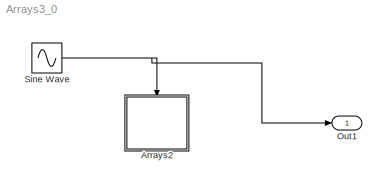
MODEL Arrays3_0
KIND model
CONFIG AbsTol = auto
CONFIG FixedStep = auto
CONFIG MaxStep = auto
CONFIG MinStep = auto
CONFIG RelTol = 1e-3
CONFIG Solver = FixedStepDiscrete
CONFIG SolverMode = Auto
CONFIG StartTime = 0.0
CONFIG StopTime = 10000.0
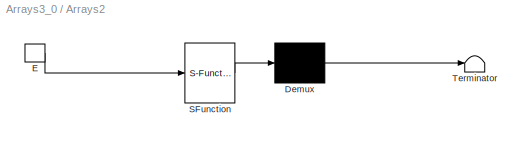
BLOCK [SubSystem] Arrays2
  MaskDescription = Stateflow diagram
  MaskDisplay = plot(sf('Private','sfblk','xIcon'),sf('Private','sfblk','yIcon'));text(0.5,0,sf('Private', 'sfblk', 'tIcon'),'HorizontalAl','Center','VerticalAl','Bottom');
  MaskIconFrame = off
  MaskIconOpaque = off
  MaskIconRotate = none
  MaskIconUnits = autoscale
  MaskSelfModifiable = on
  MaskType = Stateflow
  Ports = [0, 0, 0, 1]
  TreatAsAtomicUnit = off
BLOCK [Demux] Arrays2/ Demux 
  Outputs = 1
  Ports = [1, 1]
BLOCK [S-Function] Arrays2/ SFunction 
  FunctionName = sf_sfun
  PortCounts = [1 1]
  Ports = [1, 1]
  Tag = Stateflow S-Function Arrays3_0 1
BLOCK [Terminator] Arrays2/ Terminator 
BLOCK [TriggerPort] Arrays2/E
  Ports = [0, 1]
  ShowOutputPort = on
BLOCK [Outport] Out1
BLOCK [Sin] Sine Wave
  SampleTime = 0
  SineType = Time based
LINE Arrays2/ Demux :1 -> Arrays2/ Terminator :1
LINE Arrays2/ SFunction :1 -> Arrays2/ Demux :1
LINE Arrays2/E:1 -> Arrays2/ SFunction :1
NET Sine Wave:1 -> Arrays2:trigger, Out1:1
note: NET lines group one-source signal fan-out (src -> all destinations, sorted); 1:1 wires keep LINE
CHART Arrays2 states=3 transitions=4
  STATE_LABEL 'A/\\nen:x[0][0][0]++\\nx[0][0][1]+=2\\nx[0][1][0]+=3\\nx[0][1][1]=x[0][1][0]+1'
  STATE_LABEL 'B/\\nen:x[1][0][0]++\\nx[1][0][1]+=2\\nx[1][1][0]+=3\\nx[1][1][1]=x[1][1][0]+1'
  STATE_LABEL 'C/\\nen:x[2][0][0]++\\nx[2][0][1]+=2\\nx[2][1][0]+=3\\nx[2][1][1]=x[2][1][0]+1'
